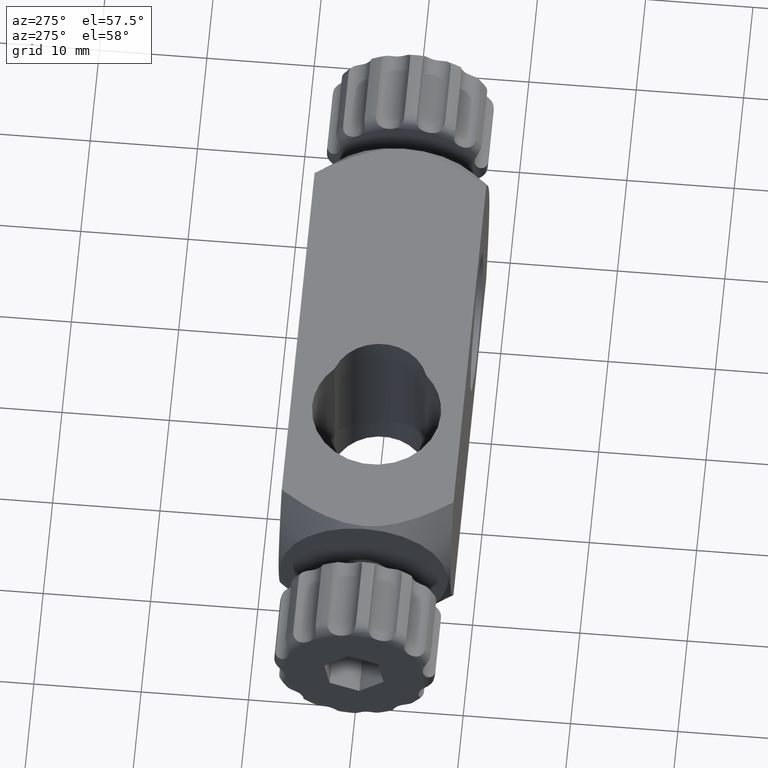
[diagram: clean part render]
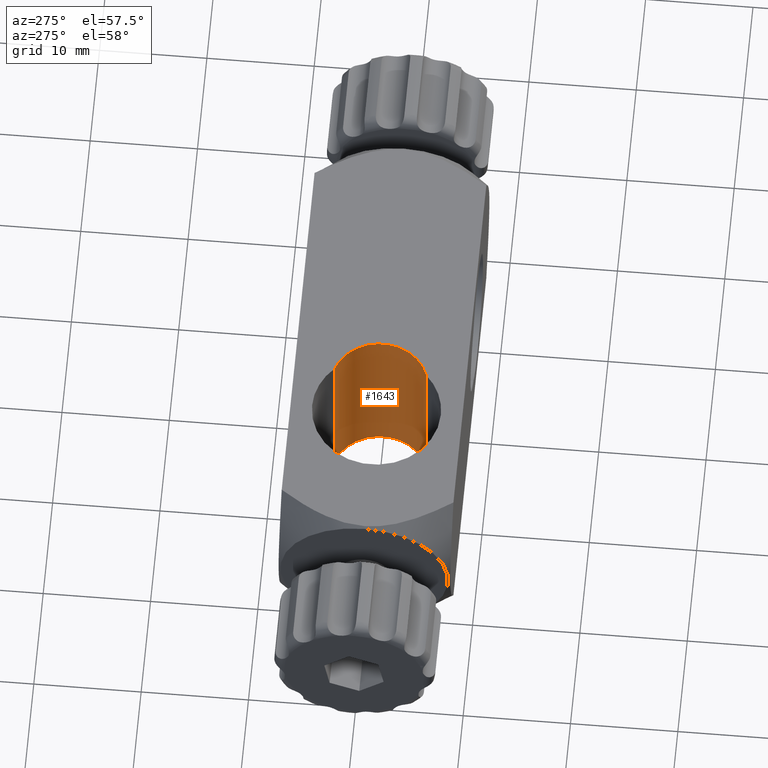
[diagram: same view with one face highlighted and labeled with its STEP entity id]
A machine part, auxiliary view. The second image highlights one B-rep face of the part: STEP entity #1643.
In plain terms, the highlighted cylindrical surface (partial cylindrical patch) has radius 4.5 mm, axis along (-0, 0, -1).
Its self-contained STEP definition (entity closure, byte-faithful):
#212 = CARTESIAN_POINT ( 'NONE',  ( -3.787500000000005418, 4.272568753103922035, 7.999999999999998224 ) ) ;
#440 = DIRECTION ( 'NONE',  ( -0.000000000000000000, 2.168404344971008868E-16, -1.000000000000000000 ) ) ;
#632 = VECTOR ( 'NONE', #440, 1000.000000000000000 ) ;
#737 = DIRECTION ( 'NONE',  ( -0.000000000000000000, 2.168404344971008868E-16, -1.000000000000000000 ) ) ;
#1214 = VECTOR ( 'NONE', #3784, 1000.000000000000000 ) ;
#1224 = CARTESIAN_POINT ( 'NONE',  ( -5.200000000000000178, -1.734723475976807094E-15, 8.000000000000001776 ) ) ;
#1301 = CARTESIAN_POINT ( 'NONE',  ( -3.787500000000005418, 4.272568753103925587, -8.000000000000000000 ) ) ;
#1369 = VERTEX_POINT ( 'NONE', #2311 ) ;
#1627 = AXIS2_PLACEMENT_3D ( 'NONE', #5829, #1698, #5387 ) ;
#1643 = ADVANCED_FACE ( 'NONE', ( #4415 ), #4866, .F. ) ;
#1698 = DIRECTION ( 'NONE',  ( 0.000000000000000000, 2.168404344971008868E-16, -1.000000000000000000 ) ) ;
#1801 = ORIENTED_EDGE ( 'NONE', *, *, #5508, .F. ) ;
#1993 = ORIENTED_EDGE ( 'NONE', *, *, #4105, .T. ) ;
#2123 = DIRECTION ( 'NONE',  ( 0.000000000000000000, 1.000000000000000000, 3.854941057726237111E-16 ) ) ;
#2311 = CARTESIAN_POINT ( 'NONE',  ( -3.787500000000004530, -4.272568753103924699, 8.000000000000000000 ) ) ;
#2686 = DIRECTION ( 'NONE',  ( 0.000000000000000000, 1.000000000000000000, 3.854941057726237111E-16 ) ) ;
#2827 = LINE ( 'NONE', #4755, #1214 ) ;
#2847 = EDGE_LOOP ( 'NONE', ( #3873, #5637, #1801, #1993 ) ) ;
#3155 = CARTESIAN_POINT ( 'NONE',  ( -3.787500000000005418, 4.272568753103922035, 8.000000000000003553 ) ) ;
#3452 = VERTEX_POINT ( 'NONE', #212 ) ;
#3644 = AXIS2_PLACEMENT_3D ( 'NONE', #5888, #4011, #2686 ) ;
#3784 = DIRECTION ( 'NONE',  ( -0.000000000000000000, 2.168404344971008868E-16, -1.000000000000000000 ) ) ;
#3793 = EDGE_CURVE ( 'NONE', #1369, #5182, #2827, .T. ) ;
#3873 = ORIENTED_EDGE ( 'NONE', *, *, #5836, .T. ) ;
#4011 = DIRECTION ( 'NONE',  ( 0.000000000000000000, 2.168404344971008868E-16, -1.000000000000000000 ) ) ;
#4105 = EDGE_CURVE ( 'NONE', #3452, #5030, #5487, .T. ) ;
#4415 = FACE_OUTER_BOUND ( 'NONE', #2847, .T. ) ;
#4755 = CARTESIAN_POINT ( 'NONE',  ( -3.787500000000004530, -4.272568753103924699, 8.000000000000000000 ) ) ;
#4866 = CYLINDRICAL_SURFACE ( 'NONE', #5349, 4.500000000000000888 ) ;
#5030 = VERTEX_POINT ( 'NONE', #1301 ) ;
#5182 = VERTEX_POINT ( 'NONE', #5342 ) ;
#5199 = CIRCLE ( 'NONE', #3644, 4.500000000000000888 ) ;
#5342 = CARTESIAN_POINT ( 'NONE',  ( -3.787500000000004530, -4.272568753103921146, -8.000000000000003553 ) ) ;
#5349 = AXIS2_PLACEMENT_3D ( 'NONE', #1224, #737, #2123 ) ;
#5387 = DIRECTION ( 'NONE',  ( 0.000000000000000000, 1.000000000000000000, 3.854941057726237111E-16 ) ) ;
#5487 = LINE ( 'NONE', #3155, #632 ) ;
#5508 = EDGE_CURVE ( 'NONE', #3452, #1369, #5199, .T. ) ;
#5586 = CIRCLE ( 'NONE', #1627, 4.500000000000000888 ) ;
#5637 = ORIENTED_EDGE ( 'NONE', *, *, #3793, .F. ) ;
#5829 = CARTESIAN_POINT ( 'NONE',  ( -5.200000000000000178, 1.734723475976807883E-15, -8.000000000000001776 ) ) ;
#5836 = EDGE_CURVE ( 'NONE', #5030, #5182, #5586, .T. ) ;
#5888 = CARTESIAN_POINT ( 'NONE',  ( -5.200000000000000178, -1.734723475976807094E-15, 8.000000000000001776 ) ) ;